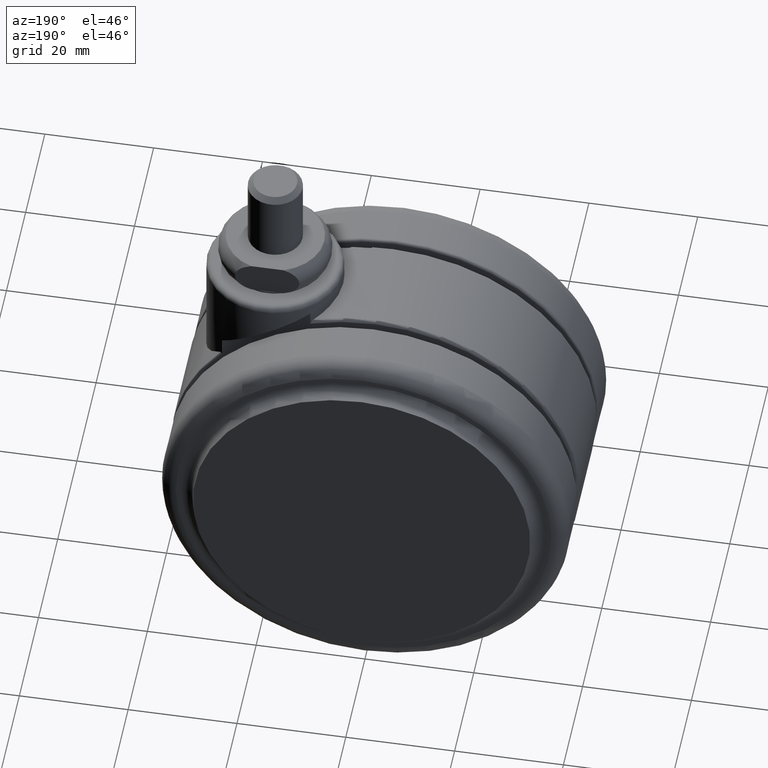
[diagram: clean part render]
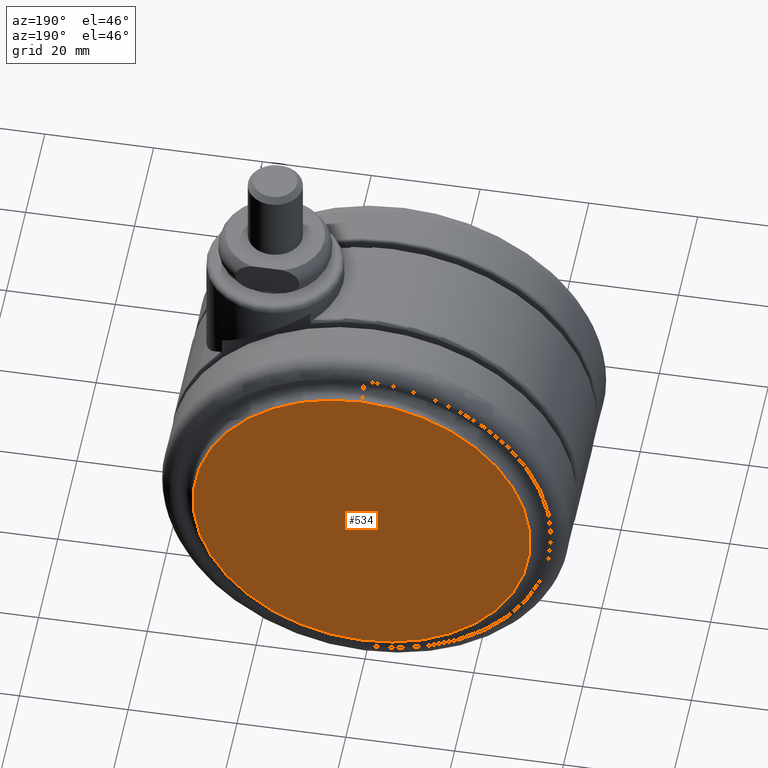
[diagram: same view with one face highlighted and labeled with its STEP entity id]
A machine part, auxiliary view. The second image highlights one B-rep face of the part: STEP entity #534.
In plain terms, the highlighted planar face has unit normal (0, 1, 0).
Its self-contained STEP definition (entity closure, byte-faithful):
#233 = CARTESIAN_POINT ( 'NONE',  ( -20.00000000000000000, 23.50000000000000000, -71.50000000000001400 ) ) ;
#308 = AXIS2_PLACEMENT_3D ( 'NONE', #776, #761, #1972 ) ;
#522 = AXIS2_PLACEMENT_3D ( 'NONE', #2596, #2030, #2002 ) ;
#534 = ADVANCED_FACE ( 'NONE', ( #2791 ), #3813, .T. ) ;
#552 = EDGE_LOOP ( 'NONE', ( #3153, #3842 ) ) ;
#761 = DIRECTION ( 'NONE',  ( -1.582413479254075000E-015, -1.000000000000000000, 0.0000000000000000000 ) ) ;
#776 = CARTESIAN_POINT ( 'NONE',  ( -20.00000000000000000, 23.50000000000000000, -40.50000000000000000 ) ) ;
#1076 = CARTESIAN_POINT ( 'NONE',  ( -20.00000000000000000, 23.50000000000000000, -40.50000000000000000 ) ) ;
#1101 = EDGE_CURVE ( 'NONE', #1475, #2743, #2888, .T. ) ;
#1103 = EDGE_CURVE ( 'NONE', #2743, #1475, #2058, .T. ) ;
#1371 = DIRECTION ( 'NONE',  ( 0.0000000000000000000, 0.0000000000000000000, -1.000000000000000000 ) ) ;
#1475 = VERTEX_POINT ( 'NONE', #3684 ) ;
#1972 = DIRECTION ( 'NONE',  ( 0.0000000000000000000, 0.0000000000000000000, -1.000000000000000000 ) ) ;
#2002 = DIRECTION ( 'NONE',  ( 0.0000000000000000000, 0.0000000000000000000, -1.000000000000000000 ) ) ;
#2030 = DIRECTION ( 'NONE',  ( -1.582413479254075000E-015, -1.000000000000000000, 0.0000000000000000000 ) ) ;
#2058 = CIRCLE ( 'NONE', #522, 31.00000000000000700 ) ;
#2596 = CARTESIAN_POINT ( 'NONE',  ( -20.00000000000000000, 23.50000000000000000, -40.50000000000000000 ) ) ;
#2743 = VERTEX_POINT ( 'NONE', #233 ) ;
#2791 = FACE_OUTER_BOUND ( 'NONE', #552, .T. ) ;
#2888 = CIRCLE ( 'NONE', #308, 31.00000000000000700 ) ;
#3153 = ORIENTED_EDGE ( 'NONE', *, *, #1103, .F. ) ;
#3342 = AXIS2_PLACEMENT_3D ( 'NONE', #1076, #3501, #1371 ) ;
#3501 = DIRECTION ( 'NONE',  ( 1.582413479254075000E-015, 1.000000000000000000, 0.0000000000000000000 ) ) ;
#3684 = CARTESIAN_POINT ( 'NONE',  ( -20.00000000000000400, 23.50000000000000000, -9.500000000000001800 ) ) ;
#3813 = PLANE ( 'NONE',  #3342 ) ;
#3842 = ORIENTED_EDGE ( 'NONE', *, *, #1101, .F. ) ;